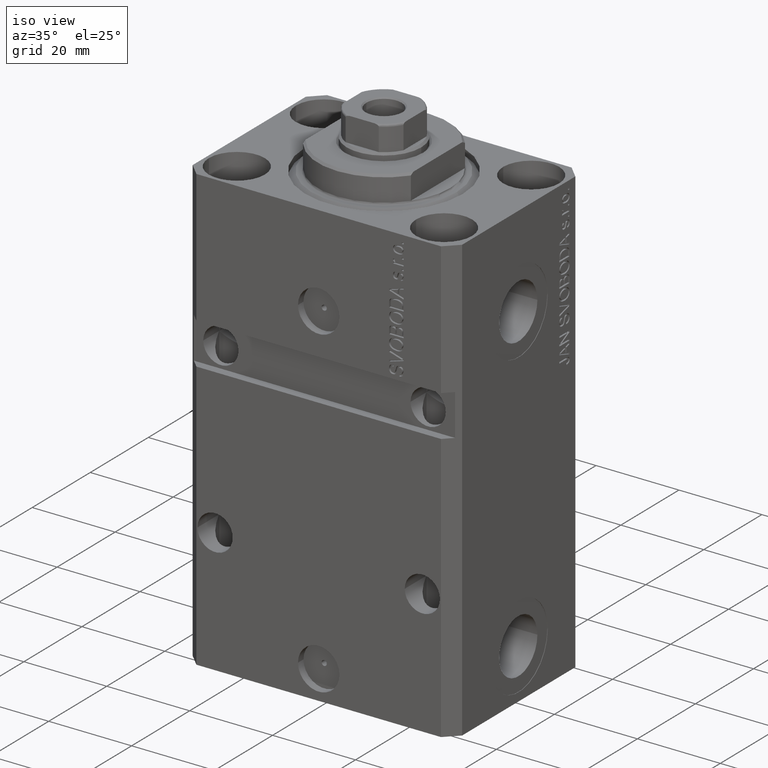
[diagram: clean part render]
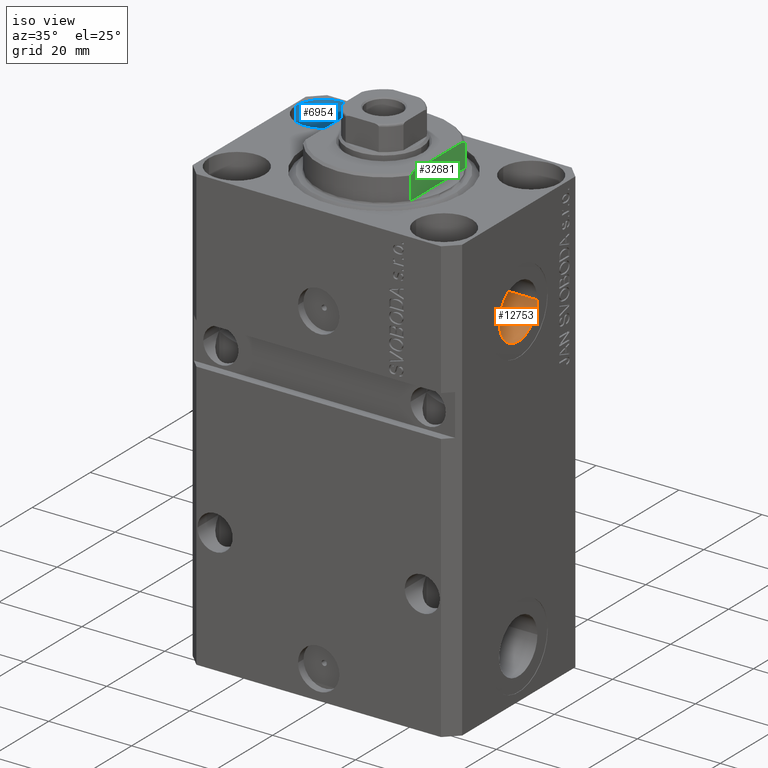
[diagram: same view with three faces highlighted in distinct colors, each labeled with its STEP entity id]
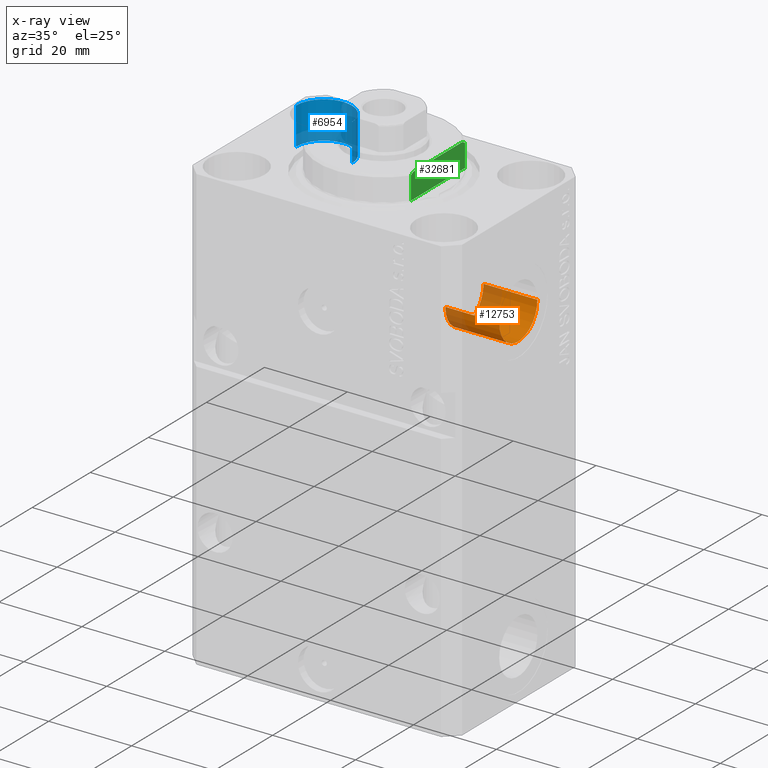
[diagram: x-ray of the same camera — body ghosted, the three highlighted faces saturated]
A machine part, iso view with three faces highlighted in distinct colors.
The next image is the same camera in x-ray (body ghosted, the three faces saturated) — at least one of them is partly hidden behind the body in this view.
Their STEP definitions:

[orange] entity #12753 — the highlighted cylindrical surface (edge-blend (fillet) strip) has radius 6.58 mm, axis along (1, -0, 0).
#634 = CIRCLE ( 'NONE', #31460, 6.580000000000002736 ) ;
#1276 = ORIENTED_EDGE ( 'NONE', *, *, #17014, .T. ) ;
#1888 = DIRECTION ( 'NONE',  ( 1.000000000000000000, -1.334402673828349134E-14, 0.000000000000000000 ) ) ;
#2578 = DIRECTION ( 'NONE',  ( 1.370906090437597808E-14, 1.000000000000000000, 0.000000000000000000 ) ) ;
#2978 = DIRECTION ( 'NONE',  ( 1.000000000000000000, -1.334402673828349134E-14, 0.000000000000000000 ) ) ;
#4276 = VERTEX_POINT ( 'NONE', #6007 ) ;
#6007 = CARTESIAN_POINT ( 'NONE',  ( 19.39999999999686153, 6.579999999999744276, -22.00000000000000000 ) ) ;
#6595 = VERTEX_POINT ( 'NONE', #36617 ) ;
#7910 = VERTEX_POINT ( 'NONE', #27376 ) ;
#9475 = CARTESIAN_POINT ( 'NONE',  ( 32.39999999999677271, -4.323464663203420381E-13, -22.00000000000000000 ) ) ;
#12753 = ADVANCED_FACE ( 'NONE', ( #13334 ), #38605, .F. ) ;
#13334 = FACE_OUTER_BOUND ( 'NONE', #39330, .T. ) ;
#13535 = EDGE_CURVE ( 'NONE', #4276, #7910, #20348, .T. ) ;
#13844 = AXIS2_PLACEMENT_3D ( 'NONE', #9475, #1888, #2578 ) ;
#14584 = EDGE_CURVE ( 'NONE', #27450, #7910, #41016, .T. ) ;
#14868 = EDGE_CURVE ( 'NONE', #6595, #4276, #634, .T. ) ;
#16033 = VECTOR ( 'NONE', #40576, 1000.000000000000000 ) ;
#17014 = EDGE_CURVE ( 'NONE', #6595, #27450, #42378, .T. ) ;
#18964 = AXIS2_PLACEMENT_3D ( 'NONE', #31032, #28038, #45047 ) ;
#19905 = VECTOR ( 'NONE', #34362, 1000.000000000000000 ) ;
#20348 = LINE ( 'NONE', #30005, #16033 ) ;
#22232 = ORIENTED_EDGE ( 'NONE', *, *, #14584, .T. ) ;
#24921 = CARTESIAN_POINT ( 'NONE',  ( 19.39999999999668745, -6.580000000000261196, -22.00000000000000000 ) ) ;
#25504 = ORIENTED_EDGE ( 'NONE', *, *, #13535, .F. ) ;
#27376 = CARTESIAN_POINT ( 'NONE',  ( 32.39999999999686509, 6.579999999999570193, -22.00000000000000000 ) ) ;
#27450 = VERTEX_POINT ( 'NONE', #40630 ) ;
#28038 = DIRECTION ( 'NONE',  ( 1.000000000000000000, -1.334402673828349292E-14, -0.000000000000000000 ) ) ;
#28041 = DIRECTION ( 'NONE',  ( 1.318178933113074700E-14, 1.000000000000000000, 0.000000000000000000 ) ) ;
#30005 = CARTESIAN_POINT ( 'NONE',  ( 19.39999999999686153, 6.579999999999744276, -22.00000000000000000 ) ) ;
#31032 = CARTESIAN_POINT ( 'NONE',  ( 19.39999999999677271, -2.588741187226566333E-13, -22.00000000000000000 ) ) ;
#31460 = AXIS2_PLACEMENT_3D ( 'NONE', #34477, #2978, #28041 ) ;
#34362 = DIRECTION ( 'NONE',  ( 1.000000000000000000, -1.334402673828349292E-14, -0.000000000000000000 ) ) ;
#34477 = CARTESIAN_POINT ( 'NONE',  ( 19.39999999999677271, -2.588741187226566333E-13, -22.00000000000000000 ) ) ;
#36617 = CARTESIAN_POINT ( 'NONE',  ( 19.39999999999668745, -6.580000000000261196, -22.00000000000000000 ) ) ;
#38605 = CYLINDRICAL_SURFACE ( 'NONE', #18964, 6.580000000000002736 ) ;
#39330 = EDGE_LOOP ( 'NONE', ( #45527, #1276, #22232, #25504 ) ) ;
#40576 = DIRECTION ( 'NONE',  ( 1.000000000000000000, -1.334402673828349292E-14, -0.000000000000000000 ) ) ;
#40630 = CARTESIAN_POINT ( 'NONE',  ( 32.39999999999668034, -6.580000000000433502, -22.00000000000000000 ) ) ;
#41016 = CIRCLE ( 'NONE', #13844, 6.580000000000002736 ) ;
#42378 = LINE ( 'NONE', #24921, #19905 ) ;
#45047 = DIRECTION ( 'NONE',  ( 1.318178933113074700E-14, 1.000000000000000000, 0.000000000000000000 ) ) ;
#45527 = ORIENTED_EDGE ( 'NONE', *, *, #14868, .F. ) ;

[blue] entity #6954 — the highlighted cylindrical surface (edge-blend (fillet) strip) has radius 6.75 mm, axis along (0, 0, 1).
#270 = VECTOR ( 'NONE', #45536, 1000.000000000000000 ) ;
#2071 = CYLINDRICAL_SURFACE ( 'NONE', #34902, 6.750000000022533087 ) ;
#2306 = DIRECTION ( 'NONE',  ( 1.000000000000000000, 0.000000000000000000, 0.000000000000000000 ) ) ;
#2531 = FACE_OUTER_BOUND ( 'NONE', #5058, .T. ) ;
#3212 = CARTESIAN_POINT ( 'NONE',  ( -18.24999999997747224, 15.00000000000000000, 0.000000000000000000 ) ) ;
#3544 = EDGE_CURVE ( 'NONE', #34180, #30084, #34511, .T. ) ;
#5058 = EDGE_LOOP ( 'NONE', ( #11074, #20596, #39323, #43545 ) ) ;
#5975 = DIRECTION ( 'NONE',  ( -0.000000000000000000, -0.000000000000000000, 1.000000000000000000 ) ) ;
#6579 = AXIS2_PLACEMENT_3D ( 'NONE', #6938, #10402, #9729 ) ;
#6938 = CARTESIAN_POINT ( 'NONE',  ( -25.00000000000000355, 15.00000000000000000, 0.000000000000000000 ) ) ;
#6954 = ADVANCED_FACE ( 'NONE', ( #2531 ), #2071, .F. ) ;
#7927 = AXIS2_PLACEMENT_3D ( 'NONE', #16547, #27752, #24299 ) ;
#9729 = DIRECTION ( 'NONE',  ( 1.000000000000000000, 0.000000000000000000, 0.000000000000000000 ) ) ;
#10000 = VECTOR ( 'NONE', #38396, 1000.000000000000000 ) ;
#10402 = DIRECTION ( 'NONE',  ( 0.000000000000000000, 0.000000000000000000, 1.000000000000000000 ) ) ;
#10894 = CIRCLE ( 'NONE', #7927, 6.750000000022533087 ) ;
#11074 = ORIENTED_EDGE ( 'NONE', *, *, #3544, .F. ) ;
#12973 = CARTESIAN_POINT ( 'NONE',  ( -31.75000000002253842, 15.00000000000000000, -9.000000000000000000 ) ) ;
#16547 = CARTESIAN_POINT ( 'NONE',  ( -25.00000000000000355, 15.00000000000000000, -9.000000000000000000 ) ) ;
#16811 = CARTESIAN_POINT ( 'NONE',  ( -18.24999999997747224, 15.00000000000000000, -9.000000000000000000 ) ) ;
#20481 = LINE ( 'NONE', #16811, #10000 ) ;
#20596 = ORIENTED_EDGE ( 'NONE', *, *, #29095, .F. ) ;
#23810 = CARTESIAN_POINT ( 'NONE',  ( -18.24999999997747224, 15.00000000000000000, -9.000000000000000000 ) ) ;
#24299 = DIRECTION ( 'NONE',  ( 1.000000000000000000, 0.000000000000000000, 0.000000000000000000 ) ) ;
#24682 = EDGE_CURVE ( 'NONE', #44642, #36776, #20481, .T. ) ;
#27752 = DIRECTION ( 'NONE',  ( 0.000000000000000000, 0.000000000000000000, 1.000000000000000000 ) ) ;
#29095 = EDGE_CURVE ( 'NONE', #44642, #34180, #10894, .T. ) ;
#30084 = VERTEX_POINT ( 'NONE', #41639 ) ;
#33428 = EDGE_CURVE ( 'NONE', #36776, #30084, #38165, .T. ) ;
#34180 = VERTEX_POINT ( 'NONE', #12973 ) ;
#34511 = LINE ( 'NONE', #45310, #270 ) ;
#34902 = AXIS2_PLACEMENT_3D ( 'NONE', #41601, #5975, #2306 ) ;
#36776 = VERTEX_POINT ( 'NONE', #3212 ) ;
#38165 = CIRCLE ( 'NONE', #6579, 6.750000000022533087 ) ;
#38396 = DIRECTION ( 'NONE',  ( -0.000000000000000000, -0.000000000000000000, 1.000000000000000000 ) ) ;
#39323 = ORIENTED_EDGE ( 'NONE', *, *, #24682, .T. ) ;
#41601 = CARTESIAN_POINT ( 'NONE',  ( -25.00000000000000355, 15.00000000000000000, -9.000000000000000000 ) ) ;
#41639 = CARTESIAN_POINT ( 'NONE',  ( -31.75000000002253842, 15.00000000000000000, 0.000000000000000000 ) ) ;
#43545 = ORIENTED_EDGE ( 'NONE', *, *, #33428, .T. ) ;
#44642 = VERTEX_POINT ( 'NONE', #23810 ) ;
#45310 = CARTESIAN_POINT ( 'NONE',  ( -31.75000000002253842, 15.00000000000000000, -9.000000000000000000 ) ) ;
#45536 = DIRECTION ( 'NONE',  ( -0.000000000000000000, -0.000000000000000000, 1.000000000000000000 ) ) ;

[green] entity #32681 — the highlighted planar face has unit normal (-1, 0, 0).
#575 = VECTOR ( 'NONE', #38281, 1000.000000000000000 ) ;
#1084 = CARTESIAN_POINT ( 'NONE',  ( -13.00000000000000000, 8.440971508067139695, -6.500000000000000000 ) ) ;
#1432 = AXIS2_PLACEMENT_3D ( 'NONE', #11253, #39304, #18387 ) ;
#1645 = CARTESIAN_POINT ( 'NONE',  ( -13.00000000000000000, -9.327379053088815652, -6.000000000000023981 ) ) ;
#1869 = EDGE_CURVE ( 'NONE', #15770, #16327, #6164, .T. ) ;
#1986 = EDGE_CURVE ( 'NONE', #39470, #9087, #28636, .T. ) ;
#2500 = ORIENTED_EDGE ( 'NONE', *, *, #1986, .F. ) ;
#2787 = VERTEX_POINT ( 'NONE', #1084 ) ;
#2905 = CARTESIAN_POINT ( 'NONE',  ( -13.00000000000000000, -8.440971508067139695, -6.500000000000000000 ) ) ;
#2946 = VECTOR ( 'NONE', #29481, 1000.000000000000000 ) ;
#3158 = CARTESIAN_POINT ( 'NONE',  ( -13.00000000000000000, 9.327379053088815652, -0.4999999999999995559 ) ) ;
#3197 = VECTOR ( 'NONE', #38974, 1000.000000000000000 ) ;
#4422 = CARTESIAN_POINT ( 'NONE',  ( -13.00000000000000000, 9.327379053088916905, -6.000000000000014211 ) ) ;
#5229 = FACE_OUTER_BOUND ( 'NONE', #39857, .T. ) ;
#5414 = CARTESIAN_POINT ( 'NONE',  ( -13.00000000000000000, -9.034292940839598884, -6.170857829009066542 ) ) ;
#6164 = B_SPLINE_CURVE_WITH_KNOTS ( 'NONE', 3,
 ( #33711, #36918, #5414, #9785 ),
 .UNSPECIFIED., .F., .F.,
 ( 4, 4 ),
 ( 0.04915043732154475431, 0.05017913261572017058 ),
 .UNSPECIFIED. ) ;
#8145 = CARTESIAN_POINT ( 'NONE',  ( -13.00000000000000000, 8.738667591047022398, -6.337881022290549282 ) ) ;
#9087 = VERTEX_POINT ( 'NONE', #3158 ) ;
#9785 = CARTESIAN_POINT ( 'NONE',  ( -13.00000000000000000, -9.327379053088815652, -6.000000000000023981 ) ) ;
#10039 = CARTESIAN_POINT ( 'NONE',  ( -13.00000000000000000, -9.327379053088815652, -0.4999999999999995559 ) ) ;
#10222 = LINE ( 'NONE', #10445, #575 ) ;
#10445 = CARTESIAN_POINT ( 'NONE',  ( -13.00000000000000000, -43.08131845707602992, -6.500000000000000000 ) ) ;
#11102 = CARTESIAN_POINT ( 'NONE',  ( -13.00000000000000000, -43.08131845707602992, -0.4999999999999995559 ) ) ;
#11253 = CARTESIAN_POINT ( 'NONE',  ( -13.00000000000000000, -43.08131845707602992, -0.4999999999999995559 ) ) ;
#11385 = CARTESIAN_POINT ( 'NONE',  ( -13.00000000000000000, 9.327379053088916905, -6.000000000000014211 ) ) ;
#11781 = LINE ( 'NONE', #11102, #2946 ) ;
#11792 = DIRECTION ( 'NONE',  ( 0.000000000000000000, 0.000000000000000000, -1.000000000000000000 ) ) ;
#12556 = ORIENTED_EDGE ( 'NONE', *, *, #13102, .T. ) ;
#13102 = EDGE_CURVE ( 'NONE', #39470, #2787, #43326, .T. ) ;
#14115 = VERTEX_POINT ( 'NONE', #10039 ) ;
#15022 = LINE ( 'NONE', #32944, #41908 ) ;
#15770 = VERTEX_POINT ( 'NONE', #2905 ) ;
#16327 = VERTEX_POINT ( 'NONE', #1645 ) ;
#17114 = EDGE_CURVE ( 'NONE', #14115, #16327, #15022, .T. ) ;
#17375 = CARTESIAN_POINT ( 'NONE',  ( -13.00000000000000000, 9.327379053088813876, -6.500000000000000000 ) ) ;
#18387 = DIRECTION ( 'NONE',  ( 0.000000000000000000, 0.000000000000000000, -1.000000000000000000 ) ) ;
#19270 = PLANE ( 'NONE',  #1432 ) ;
#23270 = ORIENTED_EDGE ( 'NONE', *, *, #1869, .T. ) ;
#25427 = CARTESIAN_POINT ( 'NONE',  ( -13.00000000000000000, 9.034035639617135516, -6.171007825636148247 ) ) ;
#28636 = LINE ( 'NONE', #17375, #3197 ) ;
#28697 = EDGE_CURVE ( 'NONE', #2787, #15770, #10222, .T. ) ;
#29481 = DIRECTION ( 'NONE',  ( -0.000000000000000000, -1.000000000000000000, -0.000000000000000000 ) ) ;
#32681 = ADVANCED_FACE ( 'NONE', ( #5229 ), #19270, .F. ) ;
#32944 = CARTESIAN_POINT ( 'NONE',  ( -13.00000000000000000, -9.327379053088813876, -6.500000000000000000 ) ) ;
#33711 = CARTESIAN_POINT ( 'NONE',  ( -13.00000000000000000, -8.440971508067139695, -6.500000000000000000 ) ) ;
#34359 = EDGE_CURVE ( 'NONE', #9087, #14115, #11781, .T. ) ;
#36609 = ORIENTED_EDGE ( 'NONE', *, *, #28697, .T. ) ;
#36918 = CARTESIAN_POINT ( 'NONE',  ( -13.00000000000000000, -8.738941625005658409, -6.337731789204286592 ) ) ;
#38281 = DIRECTION ( 'NONE',  ( -0.000000000000000000, -1.000000000000000000, -0.000000000000000000 ) ) ;
#38974 = DIRECTION ( 'NONE',  ( -0.000000000000000000, -0.000000000000000000, 1.000000000000000000 ) ) ;
#39211 = CARTESIAN_POINT ( 'NONE',  ( -13.00000000000000000, 8.440971508067139695, -6.500000000000000000 ) ) ;
#39304 = DIRECTION ( 'NONE',  ( 1.000000000000000000, 0.000000000000000000, 0.000000000000000000 ) ) ;
#39470 = VERTEX_POINT ( 'NONE', #4422 ) ;
#39857 = EDGE_LOOP ( 'NONE', ( #12556, #36609, #23270, #42176, #42576, #2500 ) ) ;
#41908 = VECTOR ( 'NONE', #11792, 1000.000000000000000 ) ;
#42176 = ORIENTED_EDGE ( 'NONE', *, *, #17114, .F. ) ;
#42576 = ORIENTED_EDGE ( 'NONE', *, *, #34359, .F. ) ;
#43326 = B_SPLINE_CURVE_WITH_KNOTS ( 'NONE', 3,
 ( #11385, #25427, #8145, #39211 ),
 .UNSPECIFIED., .F., .F.,
 ( 4, 4 ),
 ( 0.03031084603841392722, 0.03132841702658674399 ),
 .UNSPECIFIED. ) ;